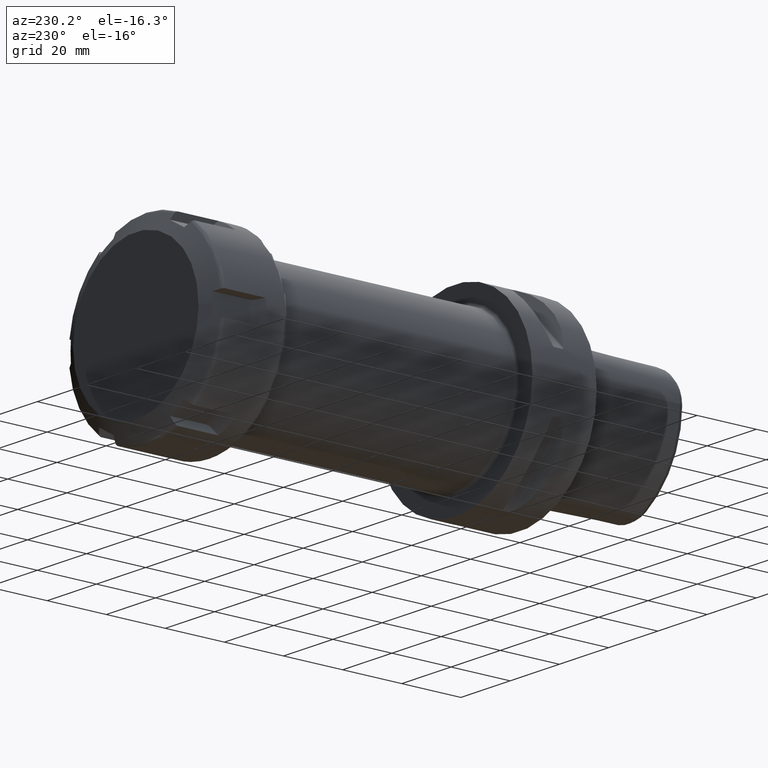
[diagram: clean part render]
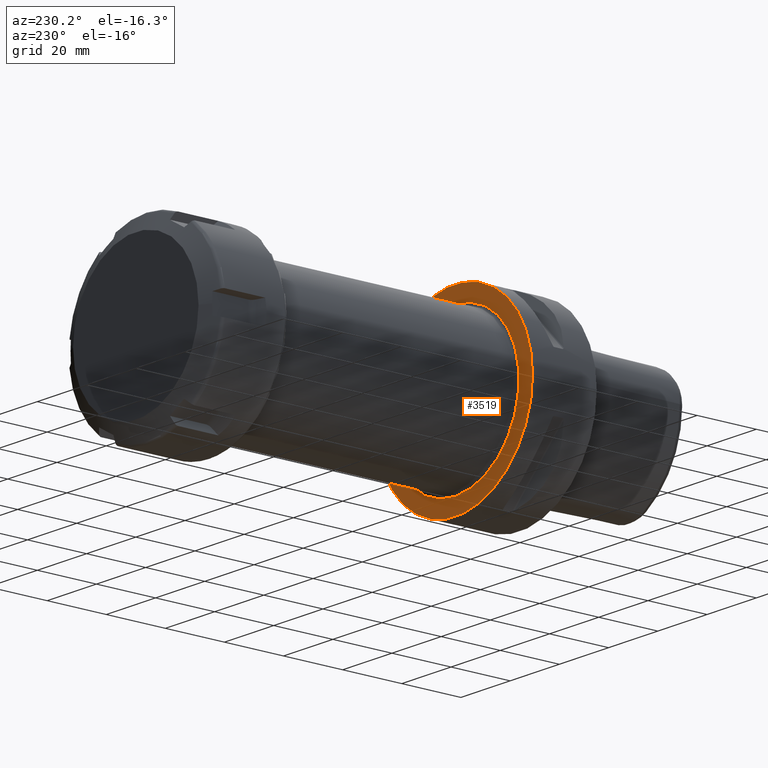
[diagram: same view with one face highlighted and labeled with its STEP entity id]
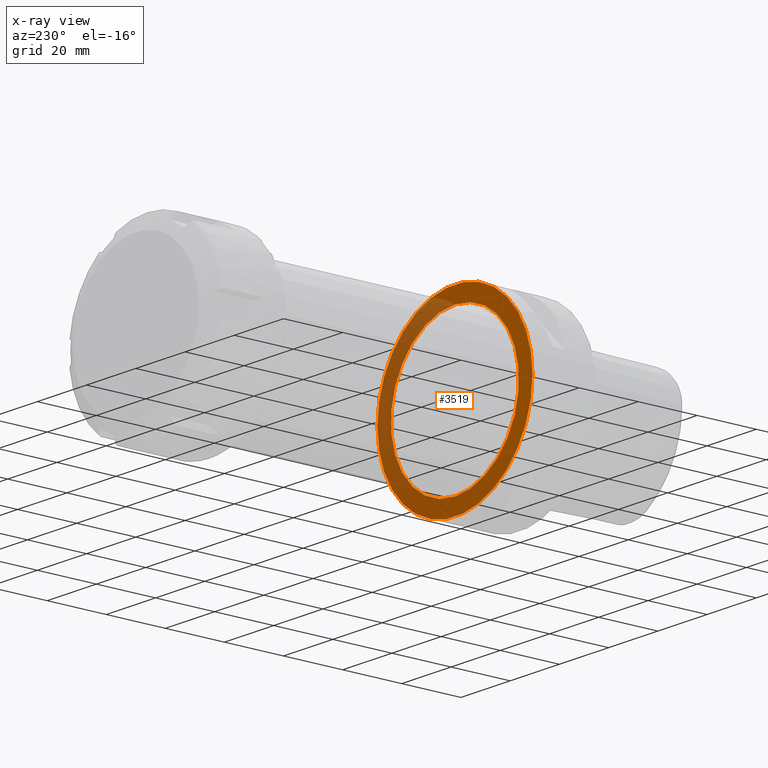
[diagram: x-ray of the same camera — body ghosted, the highlighted face saturated]
A machine part, auxiliary view. The second image highlights one B-rep face of the part: STEP entity #3519.
The next image is the same camera in x-ray: the body ghosted, the highlighted face saturated — about 33% of this face is hidden behind the body in this view.
In plain terms, the highlighted planar face has unit normal (0, -1, 0).
Its self-contained STEP definition (entity closure, byte-faithful):
#1258=CARTESIAN_POINT('',(0.E0,2.2E1,0.E0));
#1259=DIRECTION('',(0.E0,-1.E0,0.E0));
#1260=DIRECTION('',(-1.E0,0.E0,0.E0));
#1261=AXIS2_PLACEMENT_3D('',#1258,#1259,#1260);
#1432=CARTESIAN_POINT('',(0.E0,2.2E1,0.E0));
#1433=DIRECTION('',(0.E0,1.E0,0.E0));
#1434=DIRECTION('',(-1.E0,0.E0,0.E0));
#1435=AXIS2_PLACEMENT_3D('',#1432,#1433,#1434);
#1589=CARTESIAN_POINT('',(0.E0,2.2E1,0.E0));
#1590=DIRECTION('',(0.E0,1.E0,0.E0));
#1591=DIRECTION('',(0.E0,0.E0,-1.E0));
#1592=AXIS2_PLACEMENT_3D('',#1589,#1590,#1591);
#1594=CARTESIAN_POINT('',(0.E0,2.2E1,0.E0));
#1595=DIRECTION('',(0.E0,1.E0,0.E0));
#1596=DIRECTION('',(0.E0,0.E0,1.E0));
#1597=AXIS2_PLACEMENT_3D('',#1594,#1595,#1596);
#1806=CARTESIAN_POINT('',(-3.15E1,2.2E1,0.E0));
#1807=CARTESIAN_POINT('',(3.15E1,2.2E1,0.E0));
#1808=VERTEX_POINT('',#1806);
#1809=VERTEX_POINT('',#1807);
#2078=CARTESIAN_POINT('',(0.E0,2.2E1,-2.6E1));
#2079=CARTESIAN_POINT('',(0.E0,2.2E1,2.6E1));
#2080=VERTEX_POINT('',#2078);
#2081=VERTEX_POINT('',#2079);
#3504=CARTESIAN_POINT('',(0.E0,2.2E1,0.E0));
#3505=DIRECTION('',(0.E0,-1.E0,0.E0));
#3506=DIRECTION('',(-1.E0,0.E0,0.E0));
#3507=AXIS2_PLACEMENT_3D('',#3504,#3505,#3506);
#3508=PLANE('',#3507);
#3509=ORIENTED_EDGE('',*,*,#3336,.F.);
#3510=ORIENTED_EDGE('',*,*,#3166,.T.);
#3511=EDGE_LOOP('',(#3509,#3510));
#3512=FACE_OUTER_BOUND('',#3511,.F.);
#3514=ORIENTED_EDGE('',*,*,#3513,.T.);
#3516=ORIENTED_EDGE('',*,*,#3515,.T.);
#3517=EDGE_LOOP('',(#3514,#3516));
#3518=FACE_BOUND('',#3517,.F.);
#3519=ADVANCED_FACE('',(#3512,#3518),#3508,.F.);
#1262=CIRCLE('',#1261,3.15E1);
#1436=CIRCLE('',#1435,3.15E1);
#1593=CIRCLE('',#1592,2.6E1);
#1598=CIRCLE('',#1597,2.6E1);
#3166=EDGE_CURVE('',#1808,#1809,#1262,.T.);
#3336=EDGE_CURVE('',#1808,#1809,#1436,.T.);
#3513=EDGE_CURVE('',#2080,#2081,#1593,.T.);
#3515=EDGE_CURVE('',#2081,#2080,#1598,.T.);